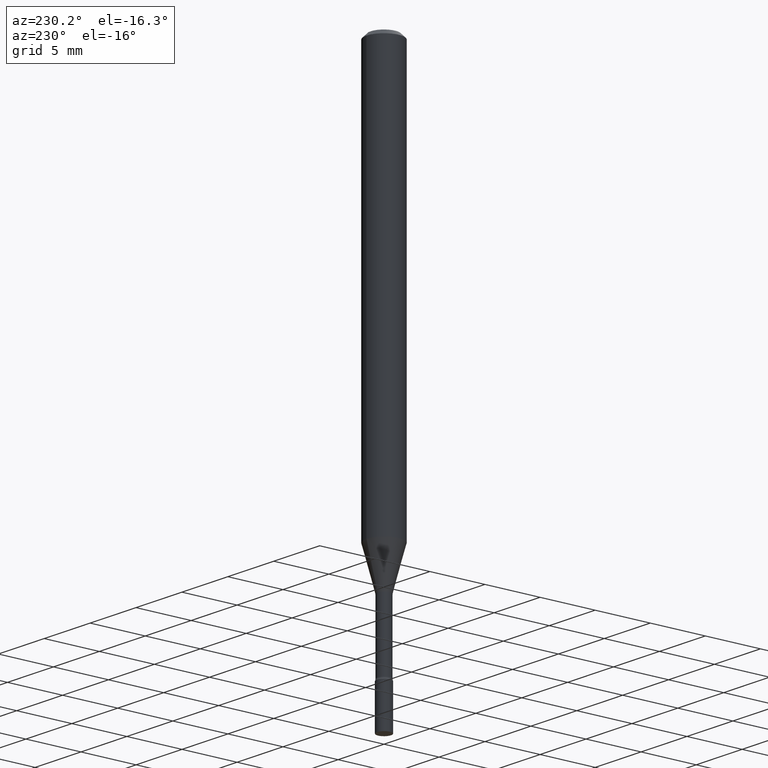
[diagram: clean part render]
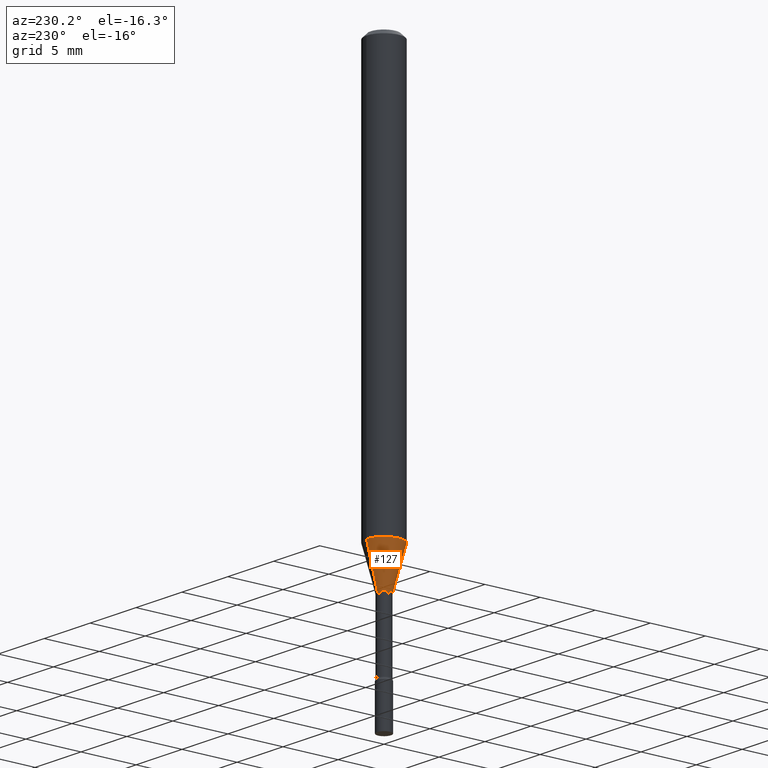
[diagram: same view with one face highlighted and labeled with its STEP entity id]
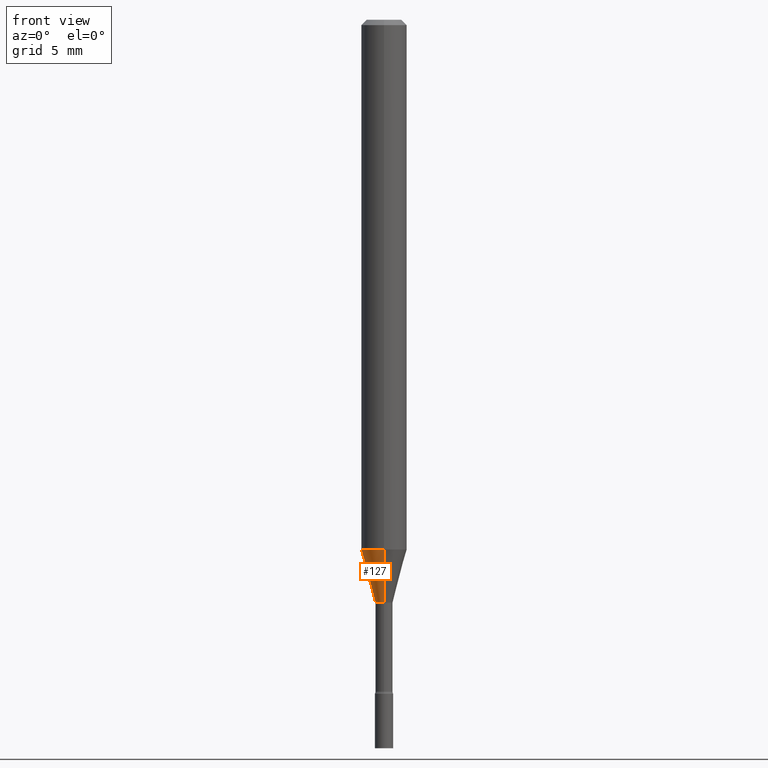
[diagram: same view with one face highlighted and labeled with its STEP entity id]
A machine part, auxiliary view. The second image highlights one B-rep face of the part: STEP entity #127.
A second angle (front view) of the same face is appended — the face is thin or edge-on in the first view.
In plain terms, the highlighted conical surface has half-angle 15 deg.
Its self-contained STEP definition (entity closure, byte-faithful):
#11 = LINE ( 'NONE', #487, #102 ) ;
#14 = CARTESIAN_POINT ( 'NONE',  ( 3.908159243488338509E-29, -5.579604345982483848E-15, -1.598092501787272912 ) ) ;
#59 = ORIENTED_EDGE ( 'NONE', *, *, #233, .F. ) ;
#102 = VECTOR ( 'NONE', #121, 39.37007874015748143 ) ;
#108 = FACE_OUTER_BOUND ( 'NONE', #348, .T. ) ;
#121 = DIRECTION ( 'NONE',  ( 1.839019923739601104E-15, 0.2588190451025250693, 0.9659258262890670910 ) ) ;
#127 = ADVANCED_FACE ( 'NONE', ( #108 ), #329, .T. ) ;
#132 = CARTESIAN_POINT ( 'NONE',  ( -1.676687031750346939E-16, -0.02401111260566956077, -1.598092501787272912 ) ) ;
#133 = DIRECTION ( 'NONE',  ( -1.807323732225330928E-15, -0.2588190451025182970, 0.9659258262890689783 ) ) ;
#140 = EDGE_CURVE ( 'NONE', #461, #230, #195, .T. ) ;
#150 = AXIS2_PLACEMENT_3D ( 'NONE', #250, #361, #162 ) ;
#159 = DIRECTION ( 'NONE',  ( -2.445515036906521826E-29, 3.491415133818832582E-15, 1.000000000000000000 ) ) ;
#162 = DIRECTION ( 'NONE',  ( -6.982962677686265133E-15, -1.000000000000000000, 0.000000000000000000 ) ) ;
#195 = CIRCLE ( 'NONE', #353, 0.02401111260566398189 ) ;
#219 = VERTEX_POINT ( 'NONE', #324 ) ;
#230 = VERTEX_POINT ( 'NONE', #132 ) ;
#233 = EDGE_CURVE ( 'NONE', #461, #286, #11, .T. ) ;
#248 = DIRECTION ( 'NONE',  ( -2.445515036906521826E-29, 3.491415133818832582E-15, 1.000000000000000000 ) ) ;
#250 = CARTESIAN_POINT ( 'NONE',  ( 3.908159243488338509E-29, -5.579604345982483848E-15, -1.598092501787272912 ) ) ;
#257 = CARTESIAN_POINT ( 'NONE',  ( -1.676687031750346939E-16, -0.02401111260566956077, -1.598092501787272912 ) ) ;
#266 = CIRCLE ( 'NONE', #288, 0.06250000000000000000 ) ;
#286 = VERTEX_POINT ( 'NONE', #295 ) ;
#288 = AXIS2_PLACEMENT_3D ( 'NONE', #469, #159, #401 ) ;
#295 = CARTESIAN_POINT ( 'NONE',  ( 4.440892098500979177E-16, 0.06249999999999489991, -1.454450018504814368 ) ) ;
#324 = CARTESIAN_POINT ( 'NONE',  ( -4.364351673553561707E-16, -0.06250000000000509315, -1.454450018504813924 ) ) ;
#329 = CONICAL_SURFACE ( 'NONE', #150, 0.02401111260566398189, 0.2617993877991502960 ) ;
#334 = LINE ( 'NONE', #257, #339 ) ;
#339 = VECTOR ( 'NONE', #133, 39.37007874015748143 ) ;
#345 = ORIENTED_EDGE ( 'NONE', *, *, #140, .T. ) ;
#348 = EDGE_LOOP ( 'NONE', ( #59, #345, #420, #465 ) ) ;
#353 = AXIS2_PLACEMENT_3D ( 'NONE', #14, #248, #402 ) ;
#361 = DIRECTION ( 'NONE',  ( -2.445515036906521826E-29, 3.491415133818832582E-15, 1.000000000000000000 ) ) ;
#376 = EDGE_CURVE ( 'NONE', #230, #219, #334, .T. ) ;
#401 = DIRECTION ( 'NONE',  ( -6.982962677686265922E-15, -1.000000000000000000, 4.370956789862821150E-15 ) ) ;
#402 = DIRECTION ( 'NONE',  ( -6.982962677686265133E-15, -1.000000000000000000, 0.000000000000000000 ) ) ;
#420 = ORIENTED_EDGE ( 'NONE', *, *, #376, .T. ) ;
#441 = CARTESIAN_POINT ( 'NONE',  ( 3.073492131224301854E-16, 0.02401111260565839609, -1.598092501787272912 ) ) ;
#461 = VERTEX_POINT ( 'NONE', #441 ) ;
#465 = ORIENTED_EDGE ( 'NONE', *, *, #503, .F. ) ;
#469 = CARTESIAN_POINT ( 'NONE',  ( 3.556879390682492586E-29, -5.078088805990789442E-15, -1.454450018504814146 ) ) ;
#487 = CARTESIAN_POINT ( 'NONE',  ( 1.706092163947621820E-16, 0.02401111260565839955, -1.598092501787272912 ) ) ;
#503 = EDGE_CURVE ( 'NONE', #286, #219, #266, .T. ) ;